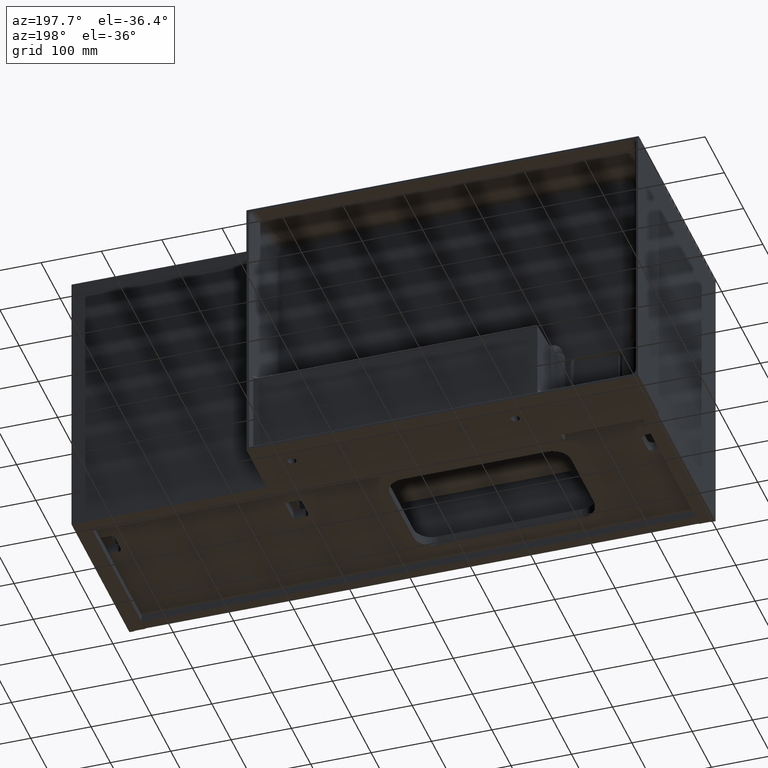
[diagram: clean part render]
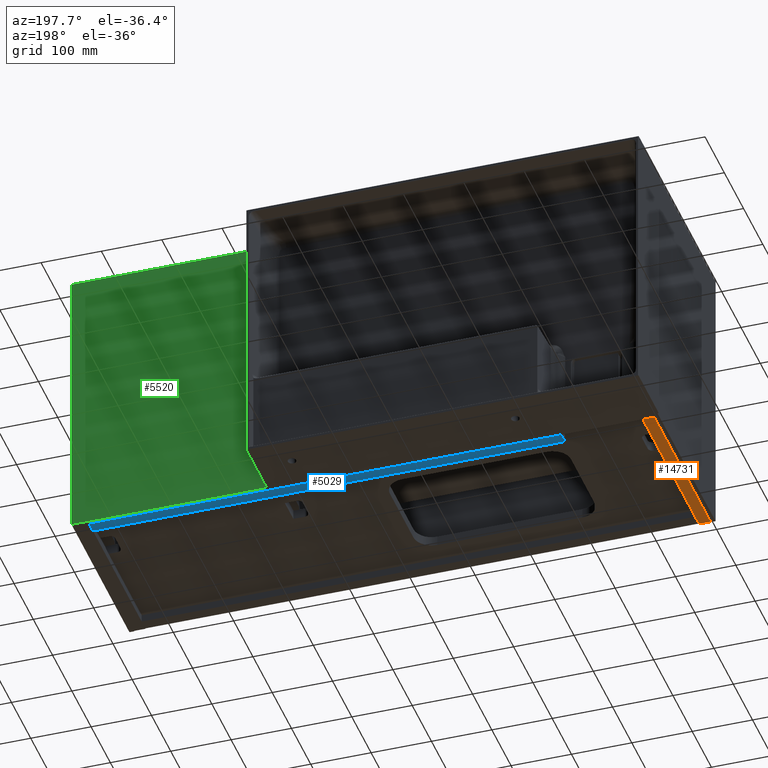
[diagram: same view with three faces highlighted in distinct colors, each labeled with its STEP entity id]
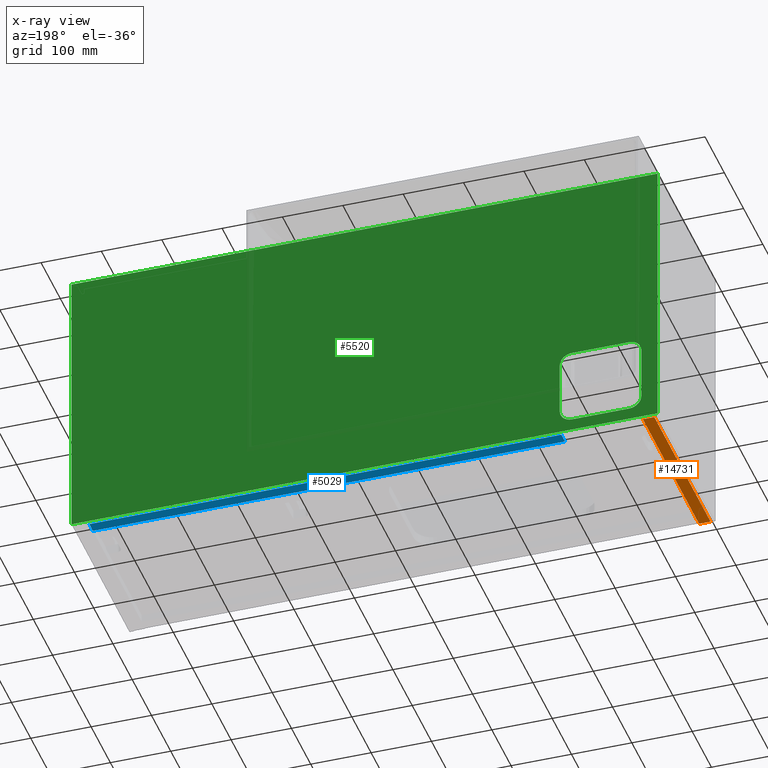
[diagram: x-ray of the same camera — body ghosted, the three highlighted faces saturated]
A machine part, auxiliary view with three faces highlighted in distinct colors.
The next image is the same camera in x-ray (body ghosted, the three faces saturated) — at least one of them is partly hidden behind the body in this view.
Their STEP definitions:

[orange] entity #14731 — the highlighted planar face has unit normal (-0, 0, 1).
#1012 = VECTOR ( 'NONE', #12136, 1000.000000000000000 ) ;
#1540 = EDGE_CURVE ( 'NONE', #10781, #1581, #12574, .T. ) ;
#1565 = CARTESIAN_POINT ( 'NONE',  ( 29.00000000000000355, 746.3974031615937292, -470.0000000000001705 ) ) ;
#1581 = VERTEX_POINT ( 'NONE', #7776 ) ;
#1633 = CARTESIAN_POINT ( 'NONE',  ( 28.99999999999999645, 292.0000000000000000, -470.0000000000001705 ) ) ;
#1907 = DIRECTION ( 'NONE',  ( -3.851859888774471706E-34, -1.000000000000000000, -1.868547012157495066E-31 ) ) ;
#2238 = EDGE_CURVE ( 'NONE', #10781, #13147, #13819, .T. ) ;
#2395 = LINE ( 'NONE', #7266, #1012 ) ;
#2873 = CARTESIAN_POINT ( 'NONE',  ( 29.00000000000000355, 746.3974031615937292, -470.0000000000001705 ) ) ;
#3415 = EDGE_CURVE ( 'NONE', #13147, #10946, #2395, .T. ) ;
#3794 = AXIS2_PLACEMENT_3D ( 'NONE', #1565, #6443, #11319 ) ;
#3919 = CARTESIAN_POINT ( 'NONE',  ( 28.99999999999999645, 0.0000000000000000000, -470.0000000000001705 ) ) ;
#4277 = CARTESIAN_POINT ( 'NONE',  ( 9.999999999999996447, 0.0000000000000000000, -470.0000000000001705 ) ) ;
#5465 = ORIENTED_EDGE ( 'NONE', *, *, #2238, .T. ) ;
#6443 = DIRECTION ( 'NONE',  ( -6.505213034913023715E-19, 1.868558296903260989E-31, 1.000000000000000000 ) ) ;
#6511 = DIRECTION ( 'NONE',  ( -1.000000000000000000, 0.0000000000000000000, -6.505213034913023715E-19 ) ) ;
#6924 = VECTOR ( 'NONE', #7736, 1000.000000000000000 ) ;
#7266 = CARTESIAN_POINT ( 'NONE',  ( 28.99999999999999645, 0.0000000000000000000, -470.0000000000001705 ) ) ;
#7634 = FACE_OUTER_BOUND ( 'NONE', #12581, .T. ) ;
#7736 = DIRECTION ( 'NONE',  ( -3.851859888774471706E-34, -1.000000000000000000, -1.868547012157495066E-31 ) ) ;
#7776 = CARTESIAN_POINT ( 'NONE',  ( 9.999999999999994671, 292.0000000000000000, -470.0000000000001705 ) ) ;
#7972 = LINE ( 'NONE', #12846, #13470 ) ;
#8298 = EDGE_CURVE ( 'NONE', #1581, #10946, #7972, .T. ) ;
#10273 = ORIENTED_EDGE ( 'NONE', *, *, #1540, .F. ) ;
#10781 = VERTEX_POINT ( 'NONE', #13459 ) ;
#10946 = VERTEX_POINT ( 'NONE', #4277 ) ;
#11183 = ORIENTED_EDGE ( 'NONE', *, *, #8298, .F. ) ;
#11319 = DIRECTION ( 'NONE',  ( 1.000000000000000000, 0.0000000000000000000, 6.505213034913023715E-19 ) ) ;
#12027 = VECTOR ( 'NONE', #6511, 1000.000000000000000 ) ;
#12136 = DIRECTION ( 'NONE',  ( -1.000000000000000000, 0.0000000000000000000, -6.505213034913023715E-19 ) ) ;
#12509 = PLANE ( 'NONE',  #3794 ) ;
#12574 = LINE ( 'NONE', #1633, #12027 ) ;
#12581 = EDGE_LOOP ( 'NONE', ( #10273, #5465, #15635, #11183 ) ) ;
#12846 = CARTESIAN_POINT ( 'NONE',  ( 9.999999999999996447, 746.3974031615937292, -470.0000000000001705 ) ) ;
#13147 = VERTEX_POINT ( 'NONE', #3919 ) ;
#13459 = CARTESIAN_POINT ( 'NONE',  ( 28.99999999999999645, 292.0000000000000000, -470.0000000000001705 ) ) ;
#13470 = VECTOR ( 'NONE', #1907, 1000.000000000000000 ) ;
#13819 = LINE ( 'NONE', #2873, #6924 ) ;
#14731 = ADVANCED_FACE ( 'NONE', ( #7634 ), #12509, .F. ) ;
#15635 = ORIENTED_EDGE ( 'NONE', *, *, #3415, .T. ) ;

[blue] entity #5029 — the highlighted planar face has unit normal (0, 0, -1).
#191 = VECTOR ( 'NONE', #12035, 1000.000000000000000 ) ;
#385 = CARTESIAN_POINT ( 'NONE',  ( 29.00000000000002487, 272.9999999999999432, -470.0000000000000000 ) ) ;
#816 = DIRECTION ( 'NONE',  ( 0.0000000000000000000, 0.0000000000000000000, -1.000000000000000000 ) ) ;
#1672 = LINE ( 'NONE', #6555, #13249 ) ;
#1817 = ORIENTED_EDGE ( 'NONE', *, *, #7534, .F. ) ;
#2015 = FACE_OUTER_BOUND ( 'NONE', #2397, .T. ) ;
#2292 = LINE ( 'NONE', #7166, #191 ) ;
#2397 = EDGE_LOOP ( 'NONE', ( #10588, #1817, #15581, #3189 ) ) ;
#3189 = ORIENTED_EDGE ( 'NONE', *, *, #7067, .T. ) ;
#3334 = CARTESIAN_POINT ( 'NONE',  ( 164.0000000000000284, 292.0000000000000000, -470.0000000000001705 ) ) ;
#3558 = CARTESIAN_POINT ( 'NONE',  ( 164.0000000000000284, 272.9999999999999432, -470.0000000000001705 ) ) ;
#3618 = CARTESIAN_POINT ( 'NONE',  ( 946.0000000000001137, 272.9999999999999432, -470.0000000000000000 ) ) ;
#4016 = VECTOR ( 'NONE', #5265, 1000.000000000000000 ) ;
#4807 = VERTEX_POINT ( 'NONE', #3334 ) ;
#5029 = ADVANCED_FACE ( 'NONE', ( #2015 ), #6893, .T. ) ;
#5265 = DIRECTION ( 'NONE',  ( -1.000000000000000000, -0.0000000000000000000, -0.0000000000000000000 ) ) ;
#5412 = EDGE_CURVE ( 'NONE', #4807, #15113, #1672, .T. ) ;
#5664 = VERTEX_POINT ( 'NONE', #8769 ) ;
#5695 = DIRECTION ( 'NONE',  ( -1.000000000000000000, 0.0000000000000000000, -0.0000000000000000000 ) ) ;
#6555 = CARTESIAN_POINT ( 'NONE',  ( 164.0000000000000284, 493.8043607061056832, -470.0000000000001705 ) ) ;
#6893 = PLANE ( 'NONE',  #12225 ) ;
#7067 = EDGE_CURVE ( 'NONE', #11528, #15113, #11336, .T. ) ;
#7166 = CARTESIAN_POINT ( 'NONE',  ( 29.00000000000002487, 292.0000000000000000, -470.0000000000000000 ) ) ;
#7534 = EDGE_CURVE ( 'NONE', #5664, #4807, #2292, .T. ) ;
#7977 = CARTESIAN_POINT ( 'NONE',  ( 946.0000000000001137, 272.9999999999999432, -470.0000000000000000 ) ) ;
#8485 = DIRECTION ( 'NONE',  ( 0.0000000000000000000, 1.000000000000000000, 0.0000000000000000000 ) ) ;
#8769 = CARTESIAN_POINT ( 'NONE',  ( 946.0000000000001137, 292.0000000000000000, -470.0000000000000000 ) ) ;
#10300 = EDGE_CURVE ( 'NONE', #11528, #5664, #14556, .T. ) ;
#10588 = ORIENTED_EDGE ( 'NONE', *, *, #5412, .F. ) ;
#11336 = LINE ( 'NONE', #385, #4016 ) ;
#11433 = DIRECTION ( 'NONE',  ( -0.0000000000000000000, -1.000000000000000000, -0.0000000000000000000 ) ) ;
#11528 = VERTEX_POINT ( 'NONE', #7977 ) ;
#11757 = CARTESIAN_POINT ( 'NONE',  ( 29.00000000000002487, 272.9999999999999432, -470.0000000000000000 ) ) ;
#12035 = DIRECTION ( 'NONE',  ( -1.000000000000000000, -0.0000000000000000000, -0.0000000000000000000 ) ) ;
#12225 = AXIS2_PLACEMENT_3D ( 'NONE', #11757, #816, #5695 ) ;
#13249 = VECTOR ( 'NONE', #11433, 1000.000000000000000 ) ;
#14556 = LINE ( 'NONE', #3618, #15458 ) ;
#15113 = VERTEX_POINT ( 'NONE', #3558 ) ;
#15458 = VECTOR ( 'NONE', #8485, 1000.000000000000000 ) ;
#15581 = ORIENTED_EDGE ( 'NONE', *, *, #10300, .F. ) ;

[green] entity #5520 — the highlighted planar face has unit normal (0, 1, 0).
#56 = DIRECTION ( 'NONE',  ( 0.0000000000000000000, 0.0000000000000000000, 1.000000000000000000 ) ) ;
#454 = DIRECTION ( 'NONE',  ( 1.000000000000000000, 0.0000000000000000000, 0.0000000000000000000 ) ) ;
#657 = CARTESIAN_POINT ( 'NONE',  ( 143.9999999999999716, 300.0000000000000000, -449.9999999999999432 ) ) ;
#883 = CARTESIAN_POINT ( 'NONE',  ( 2.000000000000057288, 300.0000000000000000, -470.0000000000000000 ) ) ;
#934 = AXIS2_PLACEMENT_3D ( 'NONE', #6133, #11005, #56 ) ;
#969 = CARTESIAN_POINT ( 'NONE',  ( 973.0000000000000000, 300.0000000000000000, 0.0000000000000000000 ) ) ;
#1097 = DIRECTION ( 'NONE',  ( 0.0000000000000000000, -0.0000000000000000000, 1.000000000000000000 ) ) ;
#1331 = CARTESIAN_POINT ( 'NONE',  ( 49.00000000000021316, 300.0000000000000000, -449.9999999999999432 ) ) ;
#1678 = VERTEX_POINT ( 'NONE', #15289 ) ;
#1774 = VERTEX_POINT ( 'NONE', #11923 ) ;
#2021 = VERTEX_POINT ( 'NONE', #9359 ) ;
#2272 = DIRECTION ( 'NONE',  ( 1.541976423090499578E-16, 0.0000000000000000000, 1.000000000000000000 ) ) ;
#2300 = PLANE ( 'NONE',  #12493 ) ;
#2414 = VERTEX_POINT ( 'NONE', #14501 ) ;
#2531 = EDGE_CURVE ( 'NONE', #4783, #11455, #12822, .T. ) ;
#2837 = VERTEX_POINT ( 'NONE', #969 ) ;
#3395 = LINE ( 'NONE', #8262, #7302 ) ;
#3556 = AXIS2_PLACEMENT_3D ( 'NONE', #10468, #8138, #13004 ) ;
#3652 = LINE ( 'NONE', #8522, #10939 ) ;
#3680 = LINE ( 'NONE', #8547, #12751 ) ;
#3991 = CIRCLE ( 'NONE', #12911, 20.00000000000001776 ) ;
#4066 = ORIENTED_EDGE ( 'NONE', *, *, #9409, .T. ) ;
#4663 = VERTEX_POINT ( 'NONE', #7718 ) ;
#4672 = CARTESIAN_POINT ( 'NONE',  ( 144.0000000000000853, 300.0000000000000000, -429.9999999999999432 ) ) ;
#4696 = DIRECTION ( 'NONE',  ( 0.0000000000000000000, 0.0000000000000000000, 1.000000000000000000 ) ) ;
#4783 = VERTEX_POINT ( 'NONE', #11642 ) ;
#4874 = DIRECTION ( 'NONE',  ( 0.0000000000000000000, 1.000000000000000000, 0.0000000000000000000 ) ) ;
#5018 = VECTOR ( 'NONE', #454, 1000.000000000000000 ) ;
#5233 = EDGE_CURVE ( 'NONE', #2837, #2021, #3680, .T. ) ;
#5520 = ADVANCED_FACE ( 'NONE', ( #8374, #13242 ), #2300, .T. ) ;
#5759 = DIRECTION ( 'NONE',  ( 1.000000000000000000, 0.0000000000000000000, -0.0000000000000000000 ) ) ;
#5935 = AXIS2_PLACEMENT_3D ( 'NONE', #4672, #9541, #14404 ) ;
#6133 = CARTESIAN_POINT ( 'NONE',  ( 144.0000000000000853, 300.0000000000000000, -339.9999999999999432 ) ) ;
#6208 = DIRECTION ( 'NONE',  ( -1.000000000000000000, -0.0000000000000000000, -0.0000000000000000000 ) ) ;
#6261 = EDGE_CURVE ( 'NONE', #7691, #10871, #8343, .T. ) ;
#6385 = VECTOR ( 'NONE', #2272, 1000.000000000000000 ) ;
#6524 = LINE ( 'NONE', #11402, #5018 ) ;
#6544 = VECTOR ( 'NONE', #4696, 1000.000000000000000 ) ;
#7012 = ORIENTED_EDGE ( 'NONE', *, *, #8026, .F. ) ;
#7048 = ORIENTED_EDGE ( 'NONE', *, *, #12918, .F. ) ;
#7174 = CARTESIAN_POINT ( 'NONE',  ( 2.000000000000057288, 300.0000000000000000, -1441.032955156517801 ) ) ;
#7302 = VECTOR ( 'NONE', #13126, 1000.000000000000000 ) ;
#7691 = VERTEX_POINT ( 'NONE', #9221 ) ;
#7718 = CARTESIAN_POINT ( 'NONE',  ( 973.0000000000000000, 300.0000000000000000, -470.0000000000000000 ) ) ;
#7810 = CIRCLE ( 'NONE', #934, 20.00000000000001776 ) ;
#7892 = ORIENTED_EDGE ( 'NONE', *, *, #2531, .F. ) ;
#8026 = EDGE_CURVE ( 'NONE', #11098, #4663, #11820, .T. ) ;
#8138 = DIRECTION ( 'NONE',  ( 0.0000000000000000000, 1.000000000000000000, 0.0000000000000000000 ) ) ;
#8262 = CARTESIAN_POINT ( 'NONE',  ( 164.0000000000000853, 300.0000000000000000, -429.9999999999998295 ) ) ;
#8343 = LINE ( 'NONE', #13213, #6385 ) ;
#8374 = FACE_BOUND ( 'NONE', #8846, .T. ) ;
#8522 = CARTESIAN_POINT ( 'NONE',  ( 973.0000000000000000, 300.0000000000000000, -1441.032955156517801 ) ) ;
#8547 = CARTESIAN_POINT ( 'NONE',  ( 2.000000000000057288, 300.0000000000000000, 0.0000000000000000000 ) ) ;
#8583 = EDGE_CURVE ( 'NONE', #11455, #1678, #12275, .T. ) ;
#8846 = EDGE_LOOP ( 'NONE', ( #12603, #11730, #9267, #10545, #7892, #13558, #14634, #10677 ) ) ;
#9188 = EDGE_CURVE ( 'NONE', #10871, #14294, #3991, .T. ) ;
#9221 = CARTESIAN_POINT ( 'NONE',  ( 29.00000000000008171, 300.0000000000000000, -429.9999999999998295 ) ) ;
#9267 = ORIENTED_EDGE ( 'NONE', *, *, #13271, .F. ) ;
#9359 = CARTESIAN_POINT ( 'NONE',  ( 2.000000000000057288, 300.0000000000000000, 0.0000000000000000000 ) ) ;
#9409 = EDGE_CURVE ( 'NONE', #11098, #2021, #10769, .T. ) ;
#9541 = DIRECTION ( 'NONE',  ( 0.0000000000000000000, 1.000000000000000000, 0.0000000000000000000 ) ) ;
#9549 = EDGE_CURVE ( 'NONE', #1774, #2414, #7810, .T. ) ;
#9641 = EDGE_CURVE ( 'NONE', #14294, #1774, #6524, .T. ) ;
#9747 = DIRECTION ( 'NONE',  ( 0.0000000000000000000, 0.0000000000000000000, 1.000000000000000000 ) ) ;
#10449 = CIRCLE ( 'NONE', #3556, 20.00000000000001776 ) ;
#10468 = CARTESIAN_POINT ( 'NONE',  ( 49.00000000000004263, 300.0000000000000000, -429.9999999999999432 ) ) ;
#10545 = ORIENTED_EDGE ( 'NONE', *, *, #8583, .F. ) ;
#10677 = ORIENTED_EDGE ( 'NONE', *, *, #9641, .F. ) ;
#10769 = LINE ( 'NONE', #15632, #6544 ) ;
#10814 = ORIENTED_EDGE ( 'NONE', *, *, #5233, .F. ) ;
#10871 = VERTEX_POINT ( 'NONE', #12415 ) ;
#10939 = VECTOR ( 'NONE', #13393, 1000.000000000000000 ) ;
#11005 = DIRECTION ( 'NONE',  ( 0.0000000000000000000, 1.000000000000000000, 0.0000000000000000000 ) ) ;
#11098 = VERTEX_POINT ( 'NONE', #14334 ) ;
#11115 = EDGE_CURVE ( 'NONE', #2414, #4783, #3395, .T. ) ;
#11390 = VECTOR ( 'NONE', #6208, 1000.000000000000000 ) ;
#11402 = CARTESIAN_POINT ( 'NONE',  ( 49.00000000000021316, 300.0000000000000000, -319.9999999999999432 ) ) ;
#11455 = VERTEX_POINT ( 'NONE', #657 ) ;
#11642 = CARTESIAN_POINT ( 'NONE',  ( 164.0000000000000853, 300.0000000000000000, -429.9999999999998295 ) ) ;
#11730 = ORIENTED_EDGE ( 'NONE', *, *, #6261, .F. ) ;
#11820 = LINE ( 'NONE', #883, #13209 ) ;
#11923 = CARTESIAN_POINT ( 'NONE',  ( 143.9999999999999716, 300.0000000000000000, -319.9999999999999432 ) ) ;
#12042 = DIRECTION ( 'NONE',  ( 0.0000000000000000000, 1.000000000000000000, 0.0000000000000000000 ) ) ;
#12275 = LINE ( 'NONE', #1331, #11390 ) ;
#12415 = CARTESIAN_POINT ( 'NONE',  ( 29.00000000000008171, 300.0000000000000000, -340.0000000000000568 ) ) ;
#12493 = AXIS2_PLACEMENT_3D ( 'NONE', #7174, #12042, #1097 ) ;
#12603 = ORIENTED_EDGE ( 'NONE', *, *, #9188, .F. ) ;
#12751 = VECTOR ( 'NONE', #13424, 1000.000000000000000 ) ;
#12822 = CIRCLE ( 'NONE', #5935, 20.00000000000001776 ) ;
#12911 = AXIS2_PLACEMENT_3D ( 'NONE', #15812, #4874, #9747 ) ;
#12918 = EDGE_CURVE ( 'NONE', #4663, #2837, #3652, .T. ) ;
#13004 = DIRECTION ( 'NONE',  ( 0.0000000000000000000, 0.0000000000000000000, 1.000000000000000000 ) ) ;
#13126 = DIRECTION ( 'NONE',  ( -3.083952846180999155E-16, -0.0000000000000000000, -1.000000000000000000 ) ) ;
#13209 = VECTOR ( 'NONE', #5759, 1000.000000000000000 ) ;
#13213 = CARTESIAN_POINT ( 'NONE',  ( 29.00000000000008171, 300.0000000000000000, -429.9999999999998295 ) ) ;
#13242 = FACE_OUTER_BOUND ( 'NONE', #13410, .T. ) ;
#13271 = EDGE_CURVE ( 'NONE', #1678, #7691, #10449, .T. ) ;
#13393 = DIRECTION ( 'NONE',  ( 0.0000000000000000000, 0.0000000000000000000, 1.000000000000000000 ) ) ;
#13410 = EDGE_LOOP ( 'NONE', ( #7012, #4066, #10814, #7048 ) ) ;
#13424 = DIRECTION ( 'NONE',  ( -1.000000000000000000, -0.0000000000000000000, -0.0000000000000000000 ) ) ;
#13558 = ORIENTED_EDGE ( 'NONE', *, *, #11115, .F. ) ;
#14294 = VERTEX_POINT ( 'NONE', #14784 ) ;
#14334 = CARTESIAN_POINT ( 'NONE',  ( 2.000000000000057288, 300.0000000000000000, -470.0000000000000000 ) ) ;
#14404 = DIRECTION ( 'NONE',  ( 0.0000000000000000000, 0.0000000000000000000, 1.000000000000000000 ) ) ;
#14501 = CARTESIAN_POINT ( 'NONE',  ( 164.0000000000000853, 300.0000000000000000, -340.0000000000000568 ) ) ;
#14634 = ORIENTED_EDGE ( 'NONE', *, *, #9549, .F. ) ;
#14784 = CARTESIAN_POINT ( 'NONE',  ( 49.00000000000021316, 300.0000000000000000, -319.9999999999998295 ) ) ;
#15289 = CARTESIAN_POINT ( 'NONE',  ( 49.00000000000021316, 300.0000000000000000, -449.9999999999999432 ) ) ;
#15632 = CARTESIAN_POINT ( 'NONE',  ( 2.000000000000057288, 300.0000000000000000, -1441.032955156517801 ) ) ;
#15812 = CARTESIAN_POINT ( 'NONE',  ( 49.00000000000004263, 300.0000000000000000, -339.9999999999999432 ) ) ;